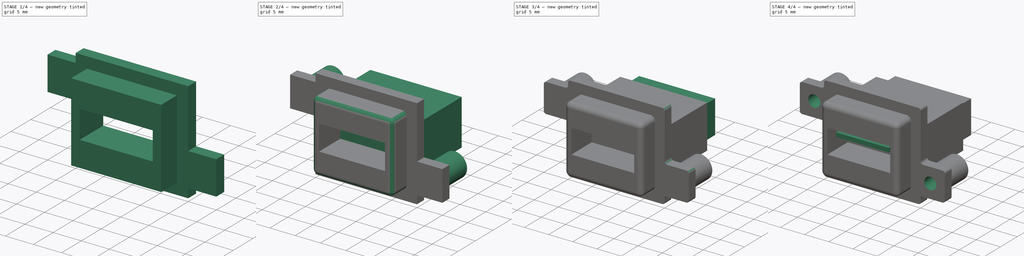
[diagram: build sequence overview — one tinted view per stage of 4, left to right]
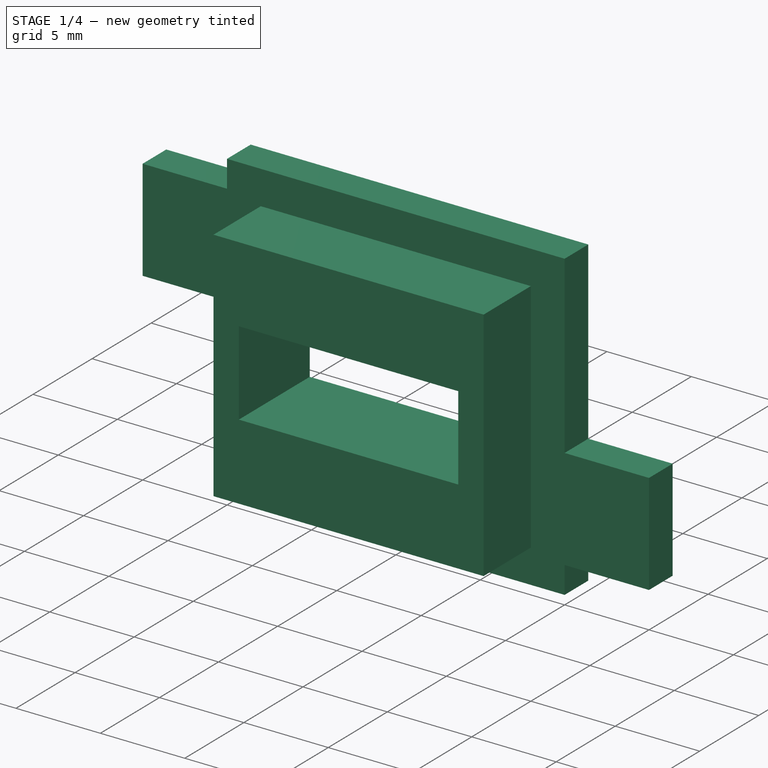
[diagram: stage 1 of 4 — iso view after this stage's code; geometry added in this stage tinted green]
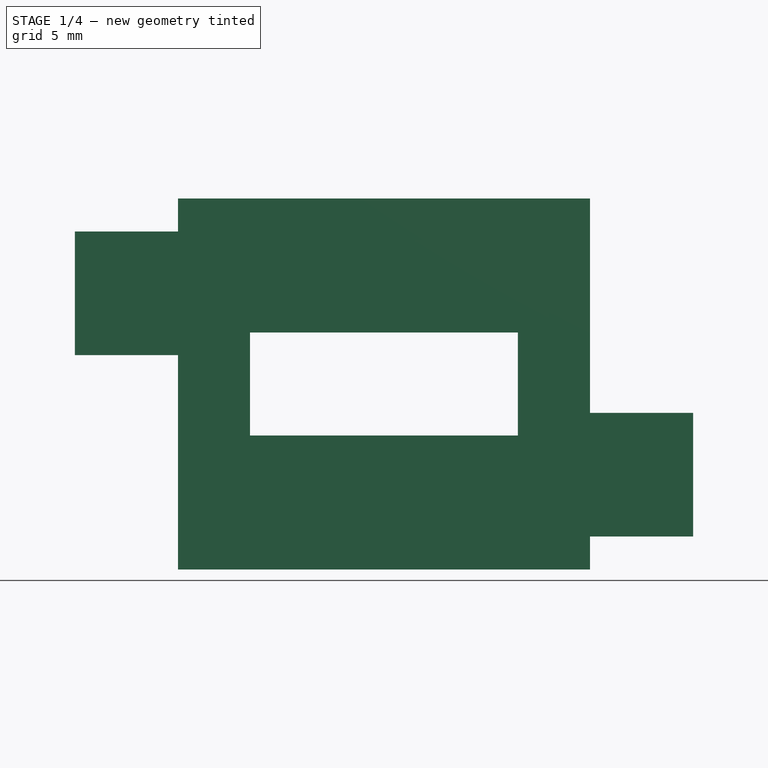
[diagram: stage 1 of 4 — front view after this stage's code; geometry added in this stage tinted green]
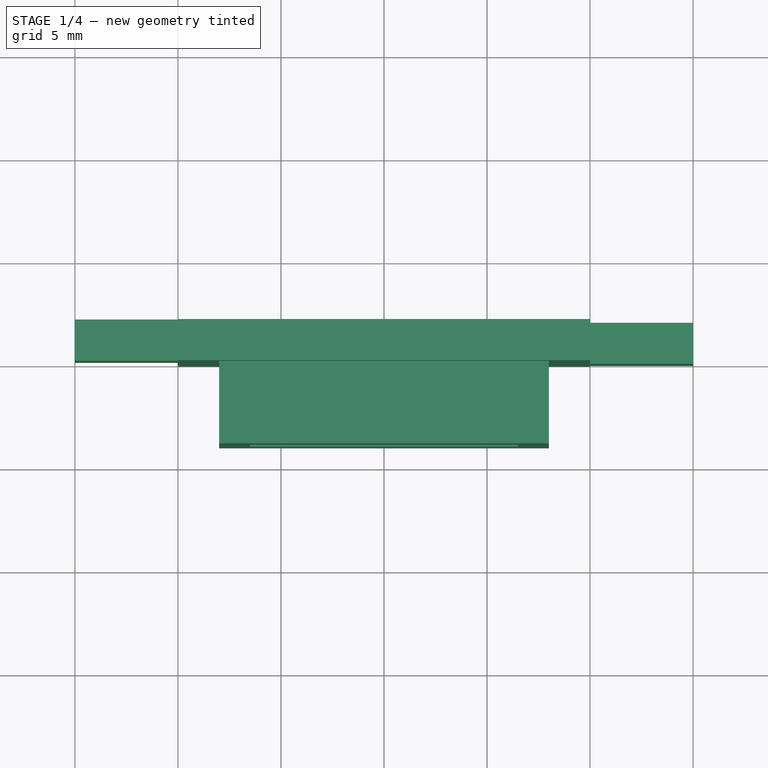
[diagram: stage 1 of 4 — top view after this stage's code; geometry added in this stage tinted green]
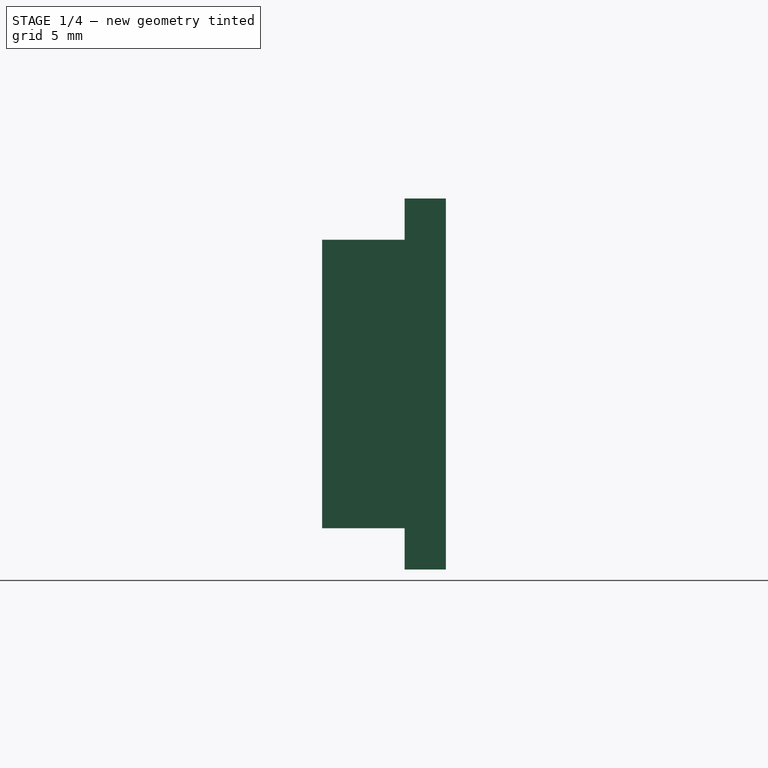
[diagram: stage 1 of 4 — right view after this stage's code; geometry added in this stage tinted green]
FCSTD DOCUMENT  (FreeCAD 0.18R15619 (Git))
Label: usb-socket
License: All rights reserved
LicenseURL: http://en.wikipedia.org/wiki/All_rights_reserved
objects: Sketcher::SketchObject×8, PartDesign::Pad×7, PartDesign::Fillet×2, PartDesign::Pocket×1, PartDesign::Body×1
note: 27 computed .brp shape members not serialized (recipe doc carries the construction recipe); baked Part::Feature solids carry a one-line shape summary decoded from their .brp

FEATURE [Sketcher::SketchObject] Sketch
  MapMode = 5
  Placement = pos=(0,0,0) rot=(1,0,0;1.5708rad)
  Support = -> [XZ_Plane]
  sketch-geometry (8):
    g0: LineSegment StartX=-8 StartY=7 StartZ=0 EndX=8 EndY=7 EndZ=0
    g1: LineSegment StartX=8 StartY=7 StartZ=0 EndX=8 EndY=-7 EndZ=0
    g2: LineSegment StartX=8 StartY=-7 StartZ=0 EndX=-8 EndY=-7 EndZ=0
    g3: LineSegment StartX=-8 StartY=-7 StartZ=0 EndX=-8 EndY=7 EndZ=0
    g4: LineSegment StartX=-6.5 StartY=2.5 StartZ=0 EndX=6.5 EndY=2.5 EndZ=0
    g5: LineSegment StartX=6.5 StartY=2.5 StartZ=0 EndX=6.5 EndY=-2.5 EndZ=0
    g6: LineSegment StartX=6.5 StartY=-2.5 StartZ=0 EndX=-6.5 EndY=-2.5 EndZ=0
    g7: LineSegment StartX=-6.5 StartY=-2.5 StartZ=0 EndX=-6.5 EndY=2.5 EndZ=0
  constraints (24):
    c: Coincident(g0,g1)
    c: Coincident(g1,g2)
    c: Coincident(g2,g3)
    c: Coincident(g3,g0)
    c: Horizontal(g0)
    c: Horizontal(g2)
    c: Vertical(g1)
    c: Vertical(g3)
    c: Distance(g0) = 16
    c: Distance(g1) = 14
    c: DistanceX(g-2,g0) = 8
    c: DistanceY(g-1,g0) = 7
    c: Coincident(g4,g5)
    c: Coincident(g5,g6)
    c: Coincident(g6,g7)
    c: Coincident(g7,g4)
    c: Horizontal(g4)
    c: Horizontal(g6)
    c: Vertical(g5)
    c: Vertical(g7)
    c: Distance(g4) = 13
    c: DistanceX(g-2,g4) = 6.5
    c: Distance(g7) = 5
    c: DistanceY(g-1,g6) = -2.5
FEATURE [Sketcher::SketchObject] Sketch001
  MapMode = 5
  Placement = pos=(0,0,0) rot=(1,0,0;1.5708rad)
  Support = -> [XZ_Plane]
  sketch-geometry (16):
    g0: LineSegment StartX=-10 StartY=9 StartZ=0 EndX=10 EndY=9 EndZ=0
    g1: LineSegment StartX=10 StartY=-9 StartZ=0 EndX=-10 EndY=-9 EndZ=0
    g2: LineSegment StartX=10 StartY=-1.4 StartZ=0 EndX=15 EndY=-1.4 EndZ=0
    g3: LineSegment StartX=15 StartY=-1.4 StartZ=0 EndX=15 EndY=-7.4 EndZ=0
    g4: LineSegment StartX=15 StartY=-7.4 StartZ=0 EndX=10 EndY=-7.4 EndZ=0
    g5: LineSegment StartX=10 StartY=9 StartZ=0 EndX=10 EndY=-1.4 EndZ=0
    g6: LineSegment StartX=10 StartY=-7.4 StartZ=0 EndX=10 EndY=-9 EndZ=0
    g7: LineSegment StartX=-10 StartY=7.4 StartZ=0 EndX=-15 EndY=7.4 EndZ=0
    g8: LineSegment StartX=-15 StartY=7.4 StartZ=0 EndX=-15 EndY=1.4 EndZ=0
    g9: LineSegment StartX=-15 StartY=1.4 StartZ=0 EndX=-10 EndY=1.4 EndZ=0
    g10: LineSegment StartX=-10 StartY=-9 StartZ=0 EndX=-10 EndY=1.4 EndZ=0
    g11: LineSegment StartX=-10 StartY=7.4 StartZ=0 EndX=-10 EndY=9 EndZ=0
    g12: LineSegment StartX=-6.5 StartY=2.5 StartZ=0 EndX=6.5 EndY=2.5 EndZ=0
    g13: LineSegment StartX=6.5 StartY=2.5 StartZ=0 EndX=6.5 EndY=-2.5 EndZ=0
    g14: LineSegment StartX=6.5 StartY=-2.5 StartZ=0 EndX=-6.5 EndY=-2.5 EndZ=0
    g15: LineSegment StartX=-6.5 StartY=-2.5 StartZ=0 EndX=-6.5 EndY=2.5 EndZ=0
  constraints (48):
    c: Horizontal(g0)
    c: Horizontal(g1)
    c: Distance(g0) = 20
    c: DistanceX(g-2,g0) = 10
    c: DistanceY(g-1,g0) = 9
    c: Coincident(g2,g3)
    c: Coincident(g3,g4)
    c: Horizontal(g2)
    c: Horizontal(g4)
    c: Vertical(g3)
    c: Distance(g3) = 6
    c: Distance(g2) = 5
    c: Coincident(g0,g5)
    c: Coincident(g2,g5)
    c: Vertical(g5)
    c: Coincident(g4,g6)
    c: Coincident(g1,g6)
    c: Distance(g6) = 1.6
    c: Vertical(g6)
    c: DistanceY(g-1,g1) = -9
    c: Coincident(g7,g8)
    c: Coincident(g8,g9)
    c: Horizontal(g7)
    c: Vertical(g8)
    c: Coincident(g0,g11)
    c: Coincident(g7,g11)
    c: Coincident(g9,g10)
    c: Coincident(g1,g10)
    c: Vertical(g10)
    c: Vertical(g11)
    c: Equal(g7,g2)
    c: Equal(g8,g3)
    c: Equal(g11,g6)
    c: Equal(g10,g5)
    c: Equal(g1,g0)
    c: Vertical(g4,g2)
    c: Coincident(g12,g13)
    c: Coincident(g13,g14)
    c: Coincident(g14,g15)
    c: Coincident(g15,g12)
    c: Horizontal(g12)
    c: Horizontal(g14)
    c: Vertical(g13)
    c: Vertical(g15)
    c: Distance(g12) = 13
    c: Distance(g15) = 5
    c: DistanceY(g-1,g12) = 2.5
    c: DistanceX(g-2,g12) = -6.5
FEATURE [PartDesign::Pad] Pad
  Length = 2
  Length2 = 100
  Placement = pos=(0,0,0) rot=(1,0,0;1.5708rad)
  Profile = -> Sketch001
  Reversed = true
  Type = 0
FEATURE [PartDesign::Pad] Pad001
  BaseFeature = -> Pad
  Length = 4
  Length2 = 100
  Placement = pos=(0,0,0) rot=(1,0,0;1.5708rad)
  Profile = -> Sketch
  Type = 0
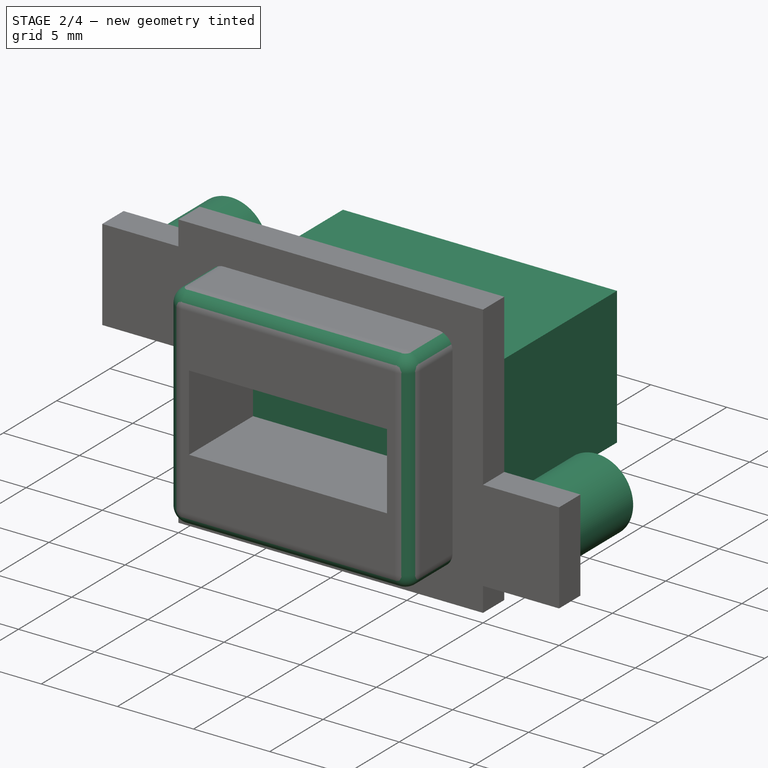
[diagram: stage 2 of 4 — iso view after this stage's code; geometry added in this stage tinted green]
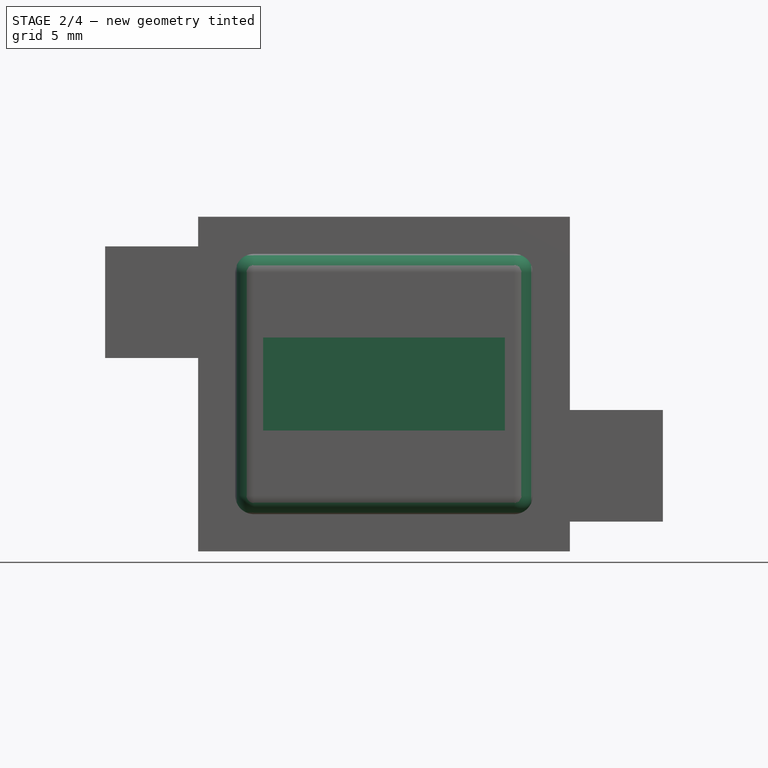
[diagram: stage 2 of 4 — front view after this stage's code; geometry added in this stage tinted green]
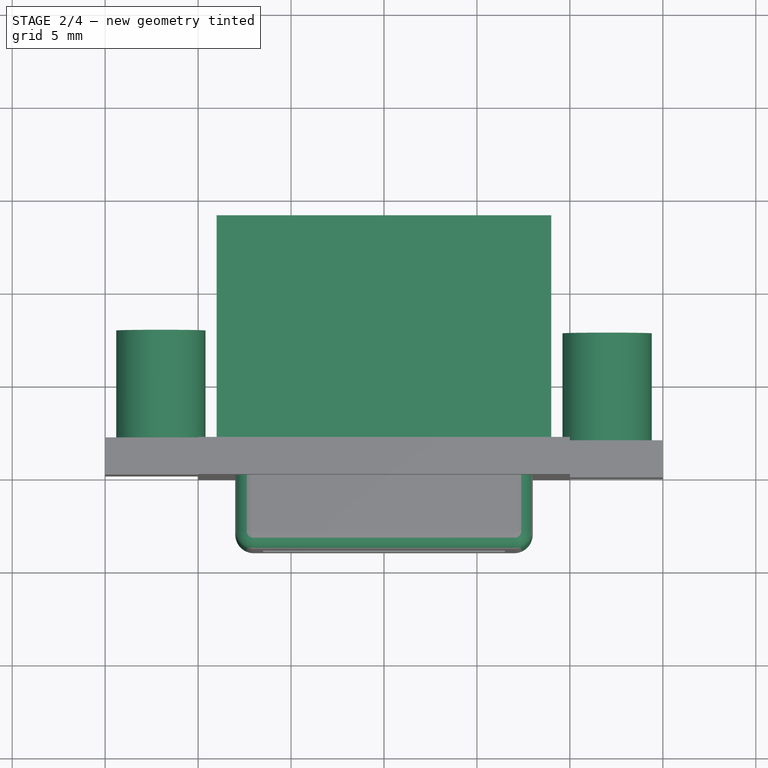
[diagram: stage 2 of 4 — top view after this stage's code; geometry added in this stage tinted green]
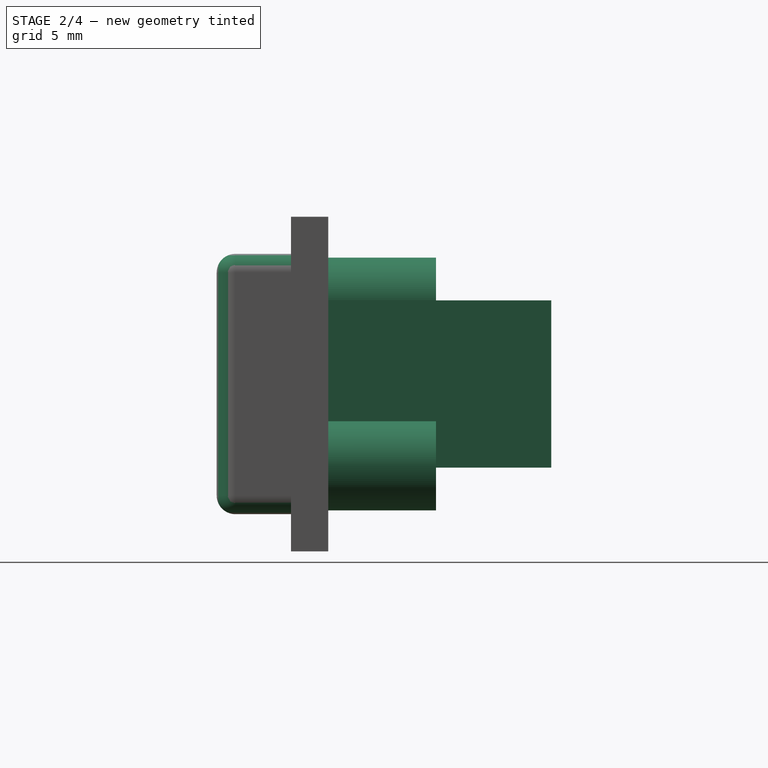
[diagram: stage 2 of 4 — right view after this stage's code; geometry added in this stage tinted green]
FEATURE [Sketcher::SketchObject] Sketch002
  ExternalGeometry = -> [Pad001]
  MapMode = 5
  Placement = pos=(0,2,4e-16) rot=(-1,0,0;1.5708rad)
  Support = -> [Pad001]
  sketch-geometry (2):
    g0: Circle CenterX=12 CenterY=4.4 CenterZ=0 NormalX=0 NormalY=0 NormalZ=1 AngleXU=0 Radius=2.4
    g1: Circle CenterX=-12 CenterY=-4.4 CenterZ=0 NormalX=0 NormalY=0 NormalZ=1 AngleXU=0 Radius=2.4
  constraints (6):
    c: Radius(g0) = 2.4
    c: Equal(g1,g0)
    c: Distance(g0,g-4) = 3
    c: Distance(g0,g-3) = 3
    c: Distance(g1,g-7) = 3
    c: Distance(g1,g-6) = 3
FEATURE [PartDesign::Pad] Pad002
  BaseFeature = -> Pad001
  Length = 5.8
  Length2 = 100
  Placement = pos=(0,0,0) rot=(1,0,0;1.5708rad)
  Profile = -> Sketch002
  Type = 0
FEATURE [PartDesign::Fillet] Fillet
  Base = -> Pad002 [Edge52,Edge54,Edge51,Edge50,Edge53,Edge49,Edge47,Edge48]
  BaseFeature = -> Pad002
  Placement = pos=(0,0,0) rot=(1,0,0;1.5708rad)
  Radius = 1
FEATURE [Sketcher::SketchObject] Sketch003
  MapMode = 5
  Placement = pos=(0,2,-9e-16) rot=(-1,0,0;1.5708rad)
  Support = -> [Fillet]
  sketch-geometry (4):
    g0: LineSegment StartX=-9 StartY=4.5 StartZ=0 EndX=9 EndY=4.5 EndZ=0
    g1: LineSegment StartX=9 StartY=4.5 StartZ=0 EndX=9 EndY=-4.5 EndZ=0
    g2: LineSegment StartX=9 StartY=-4.5 StartZ=0 EndX=-9 EndY=-4.5 EndZ=0
    g3: LineSegment StartX=-9 StartY=-4.5 StartZ=0 EndX=-9 EndY=4.5 EndZ=0
  constraints (12):
    c: Coincident(g0,g1)
    c: Coincident(g1,g2)
    c: Coincident(g2,g3)
    c: Coincident(g3,g0)
    c: Horizontal(g0)
    c: Horizontal(g2)
    c: Vertical(g1)
    c: Vertical(g3)
    c: Distance(g0) = 18
    c: Distance(g1) = 9
    c: DistanceY(g-1,g0) = 4.5
    c: DistanceX(g-2,g0) = 9
FEATURE [PartDesign::Pad] Pad003
  BaseFeature = -> Fillet
  Length = 12
  Length2 = 100
  Placement = pos=(0,0,0) rot=(1,0,0;1.5708rad)
  Profile = -> Sketch003
  Type = 0
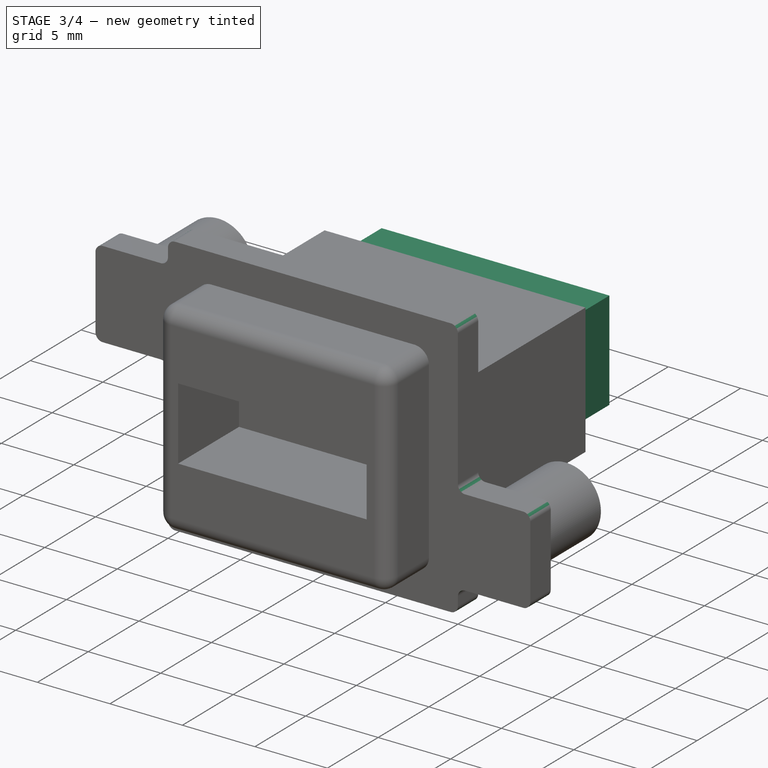
[diagram: stage 3 of 4 — iso view after this stage's code; geometry added in this stage tinted green]
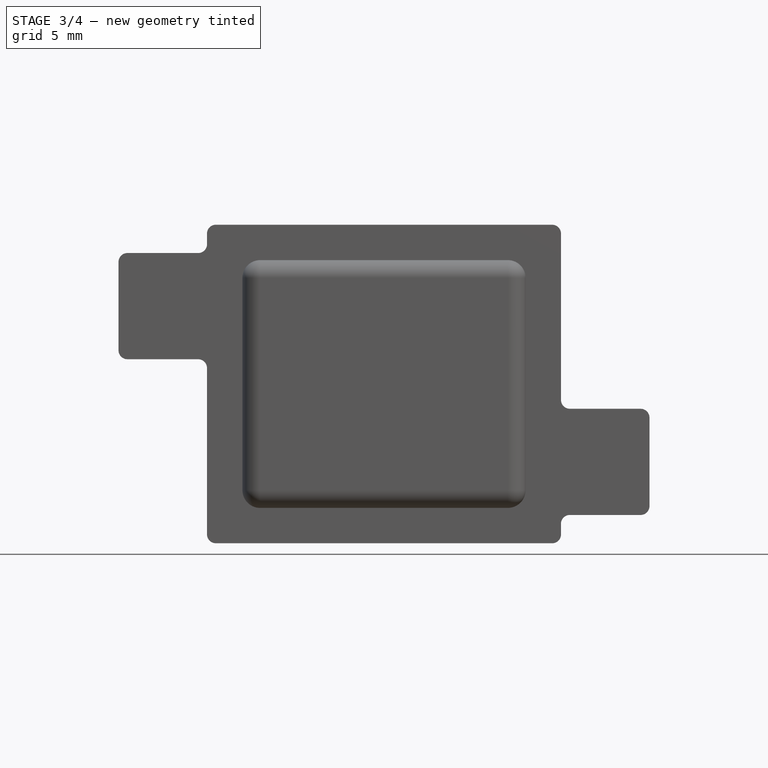
[diagram: stage 3 of 4 — front view after this stage's code; geometry added in this stage tinted green]
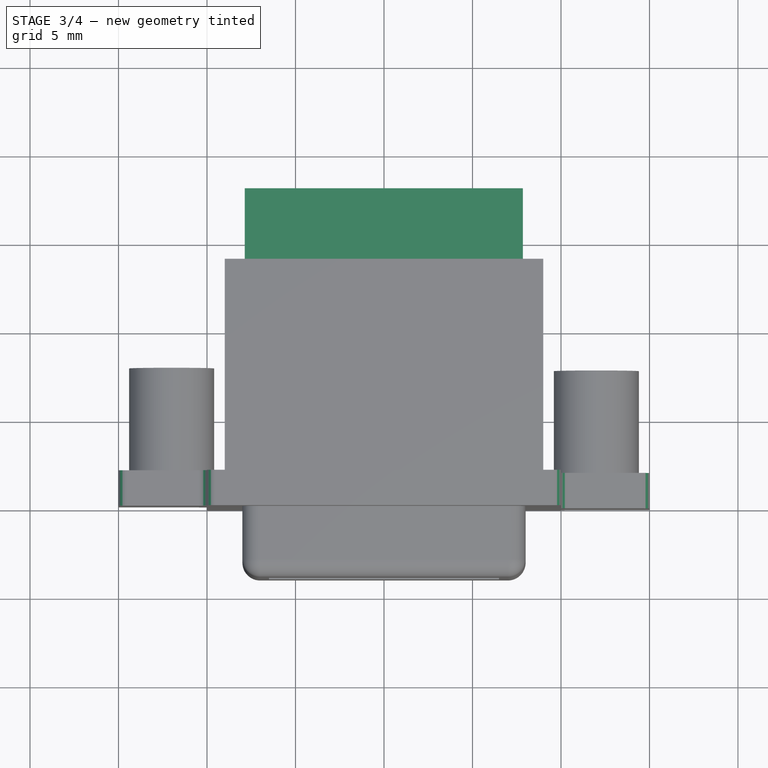
[diagram: stage 3 of 4 — top view after this stage's code; geometry added in this stage tinted green]
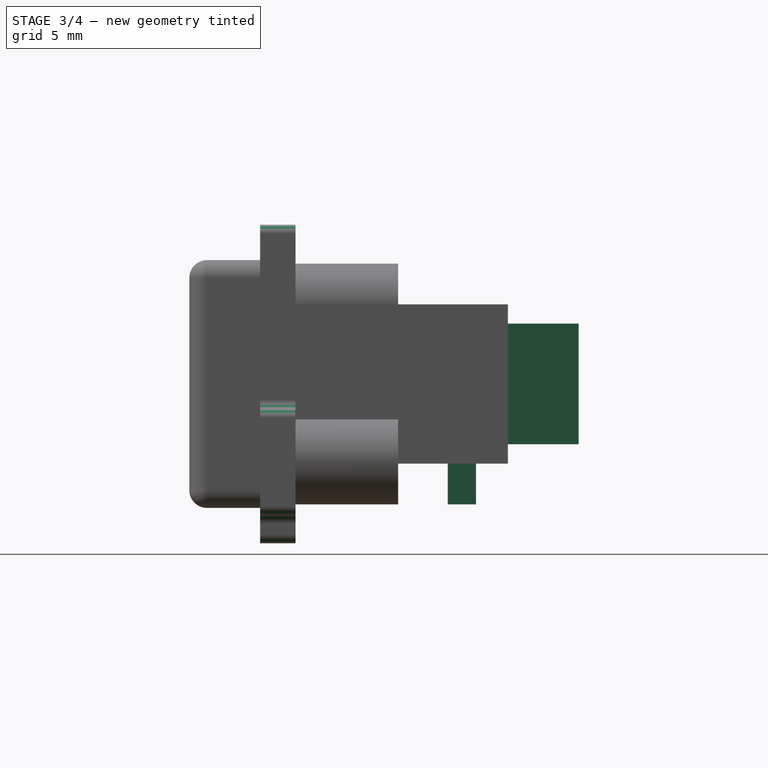
[diagram: stage 3 of 4 — right view after this stage's code; geometry added in this stage tinted green]
FEATURE [PartDesign::Fillet] Fillet001
  Base = -> Pad003 [Edge23,Edge24,Edge26,Edge30,Edge38,Edge28,Edge32,Edge36,Edge40,Edge42,Edge44,Edge34,Edge68,Edge63,Edge64,Edge66,Edge67,Edge69,Edge65,Edge70,Edge72,Edge71,Edge74,Edge73,Edge52,Edge48,Edge56,Edge54,Edge58,Edge50,Edge46,Edge37]
  BaseFeature = -> Pad003
  Placement = pos=(0,0,0) rot=(1,0,0;1.5708rad)
  Radius = 0.5
FEATURE [Sketcher::SketchObject] Sketch004
  MapMode = 5
  Placement = pos=(0,14,-5.9e-15) rot=(-1,0,0;1.5708rad)
  Support = -> [Fillet001]
  sketch-geometry (4):
    g0: LineSegment StartX=-7.86511 StartY=3.40166 StartZ=0 EndX=7.84707 EndY=3.40166 EndZ=0
    g1: LineSegment StartX=7.84707 StartY=3.40166 StartZ=0 EndX=7.84707 EndY=-3.41104 EndZ=0
    g2: LineSegment StartX=7.84707 StartY=-3.41104 StartZ=0 EndX=-7.86511 EndY=-3.41104 EndZ=0
    g3: LineSegment StartX=-7.86511 StartY=-3.41104 StartZ=0 EndX=-7.86511 EndY=3.40166 EndZ=0
  constraints (8):
    c: Coincident(g0,g1)
    c: Coincident(g1,g2)
    c: Coincident(g2,g3)
    c: Coincident(g3,g0)
    c: Horizontal(g0)
    c: Horizontal(g2)
    c: Vertical(g1)
    c: Vertical(g3)
FEATURE [PartDesign::Pad] Pad004
  BaseFeature = -> Fillet001
  Length = 4
  Length2 = 100
  Placement = pos=(0,0,0) rot=(1,0,0;1.5708rad)
  Profile = -> Sketch004
  Type = 0
FEATURE [Sketcher::SketchObject] Sketch005
  MapMode = 5
  Placement = pos=(0,-2e-15,-4.5) rot=(1,0,0;3.14159rad)
  Support = -> [Pad004]
  sketch-geometry (8):
    g0: LineSegment StartX=6.0058 StartY=-10.5992 StartZ=0 EndX=7.47881 EndY=-10.5992 EndZ=0
    g1: LineSegment StartX=7.47881 StartY=-10.5992 StartZ=0 EndX=7.47881 EndY=-12.1336 EndZ=0
    g2: LineSegment StartX=7.47881 StartY=-12.1336 StartZ=0 EndX=6.0058 EndY=-12.1336 EndZ=0
    g3: LineSegment StartX=6.0058 StartY=-12.1336 StartZ=0 EndX=6.0058 EndY=-10.5992 EndZ=0
    g4: LineSegment StartX=-7.25135 StartY=-10.5992 StartZ=0 EndX=-5.71696 EndY=-10.5992 EndZ=0
    g5: LineSegment StartX=-5.71696 StartY=-10.5992 StartZ=0 EndX=-5.71696 EndY=-12.195 EndZ=0
    g6: LineSegment StartX=-5.71696 StartY=-12.195 StartZ=0 EndX=-7.25135 EndY=-12.195 EndZ=0
    g7: LineSegment StartX=-7.25135 StartY=-12.195 StartZ=0 EndX=-7.25135 EndY=-10.5992 EndZ=0
  constraints (16):
    c: Coincident(g0,g1)
    c: Coincident(g1,g2)
    c: Coincident(g2,g3)
    c: Coincident(g3,g0)
    c: Horizontal(g0)
    c: Horizontal(g2)
    c: Vertical(g1)
    c: Vertical(g3)
    c: Coincident(g4,g5)
    c: Coincident(g5,g6)
    c: Coincident(g6,g7)
    c: Coincident(g7,g4)
    c: Horizontal(g4)
    c: Horizontal(g6)
    c: Vertical(g5)
    c: Vertical(g7)
FEATURE [PartDesign::Pad] Pad005
  BaseFeature = -> Pad004
  Length = 2.3
  Length2 = 100
  Placement = pos=(0,0,0) rot=(1,0,0;1.5708rad)
  Profile = -> Sketch005
  Type = 0
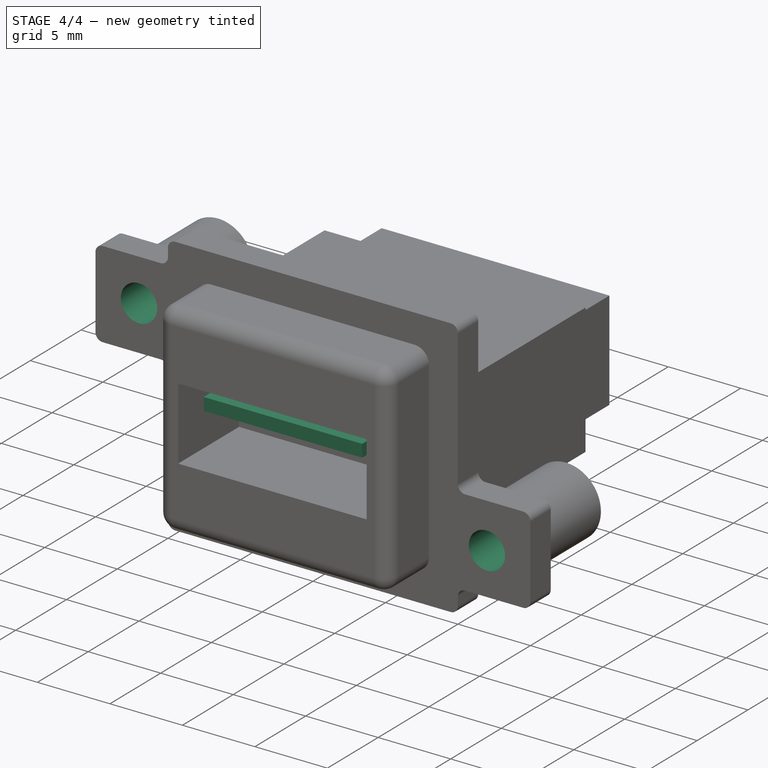
[diagram: stage 4 of 4 — iso view after this stage's code; geometry added in this stage tinted green]
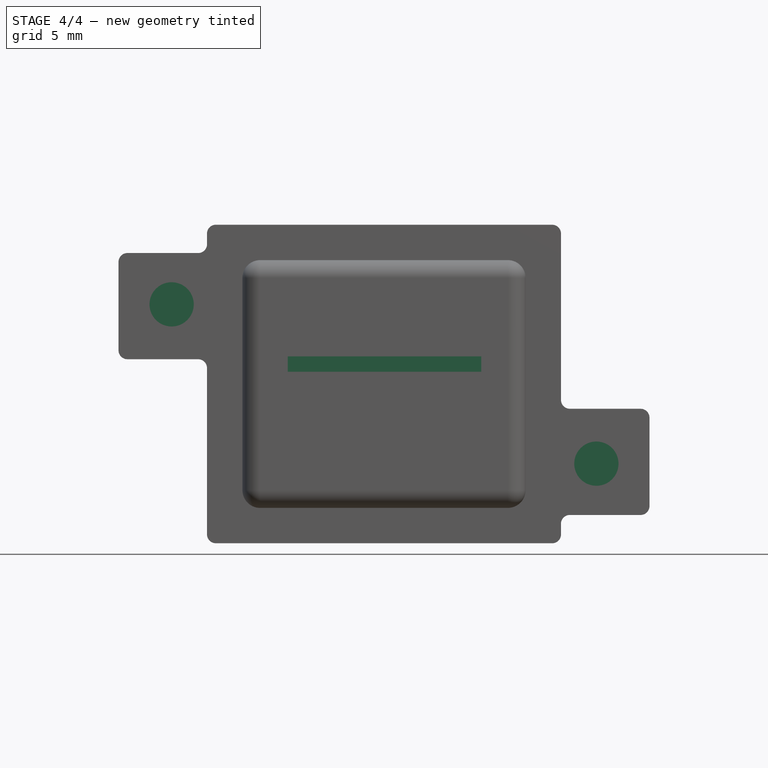
[diagram: stage 4 of 4 — front view after this stage's code; geometry added in this stage tinted green]
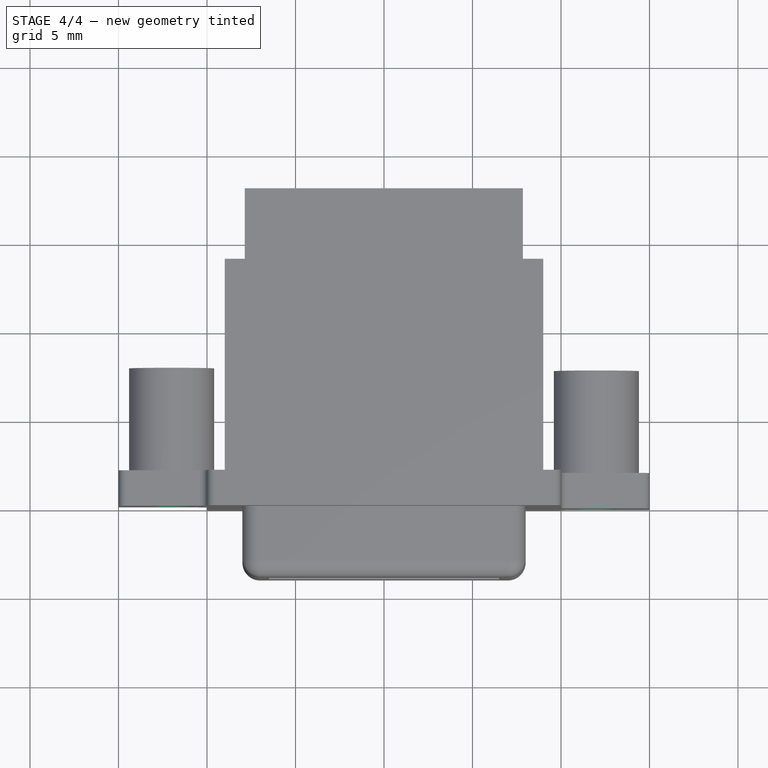
[diagram: stage 4 of 4 — top view after this stage's code; geometry added in this stage tinted green]
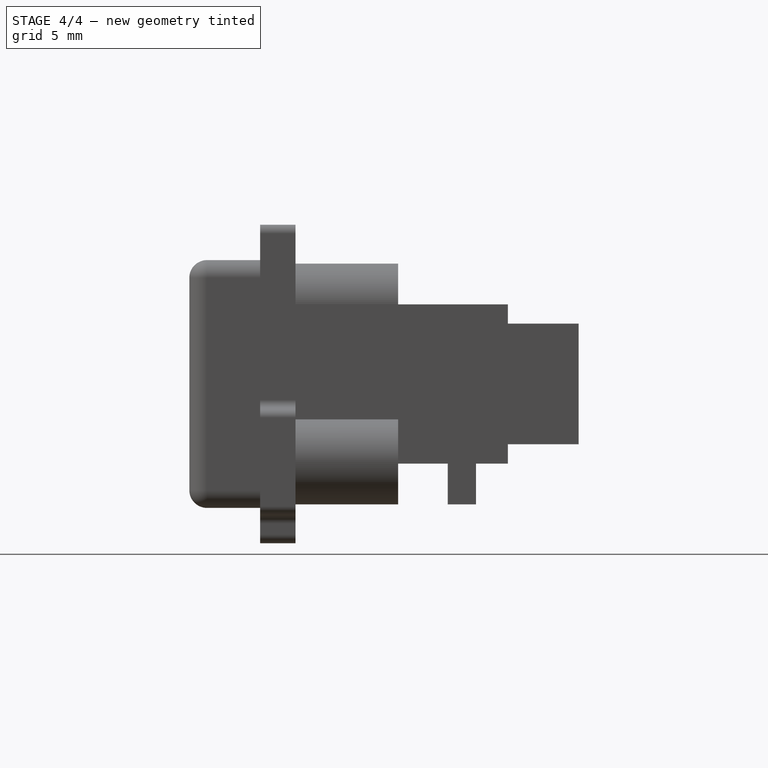
[diagram: stage 4 of 4 — right view after this stage's code; geometry added in this stage tinted green]
FEATURE [Sketcher::SketchObject] Sketch006
  MapMode = 5
  Placement = pos=(0,0,0) rot=(1,0,0;1.5708rad)
  Support = -> [Pad005]
  sketch-geometry (2):
    g0: Circle CenterX=-12 CenterY=4.5 CenterZ=0 NormalX=0 NormalY=0 NormalZ=1 AngleXU=0 Radius=1.25
    g1: Circle CenterX=12 CenterY=-4.5 CenterZ=0 NormalX=0 NormalY=0 NormalZ=1 AngleXU=0 Radius=1.25
  constraints (6):
    c: DistanceX(g0,g1) = 24
    c: DistanceX(g-2,g1) = 12
    c: Radius(g1) = 1.25
    c: Equal(g1,g0)
    c: DistanceY(g1,g0) = 9
    c: DistanceY(g-1,g0) = 4.5
FEATURE [PartDesign::Pocket] Pocket
  BaseFeature = -> Pad005
  Length = 7
  Length2 = 100
  Placement = pos=(0,0,0) rot=(1,0,0;1.5708rad)
  Profile = -> Sketch006
  Refine = true
  Type = 0
FEATURE [Sketcher::SketchObject] Sketch007
  MapMode = 5
  Placement = pos=(0,2,-8e-16) rot=(1,0,0;1.5708rad)
  Support = -> [Pocket]
  sketch-geometry (4):
    g0: LineSegment StartX=-5.43512 StartY=1.55835 StartZ=0 EndX=5.49717 EndY=1.55835 EndZ=0
    g1: LineSegment StartX=5.49717 StartY=1.55835 StartZ=0 EndX=5.49717 EndY=0.695281 EndZ=0
    g2: LineSegment StartX=5.49717 StartY=0.695281 StartZ=0 EndX=-5.43512 EndY=0.695281 EndZ=0
    g3: LineSegment StartX=-5.43512 StartY=0.695281 StartZ=0 EndX=-5.43512 EndY=1.55835 EndZ=0
  constraints (8):
    c: Coincident(g0,g1)
    c: Coincident(g1,g2)
    c: Coincident(g2,g3)
    c: Coincident(g3,g0)
    c: Horizontal(g0)
    c: Horizontal(g2)
    c: Vertical(g1)
    c: Vertical(g3)
FEATURE [PartDesign::Pad] Pad006
  BaseFeature = -> Pocket
  Length = 5
  Length2 = 100
  Placement = pos=(0,0,0) rot=(1,0,0;1.5708rad)
  Profile = -> Sketch007
  Type = 0
FEATURE [PartDesign::Body] Body
  Group = -> [Sketch,Sketch001,Pad,Pad001,Sketch002,Pad002,Fillet,Sketch003,Pad003,Fillet001,Sketch004,Pad004,Sketch005,Pad005,Sketch006,Pocket,Sketch007,Pad006]
  Origin = -> Origin
  Tip = -> Pad006
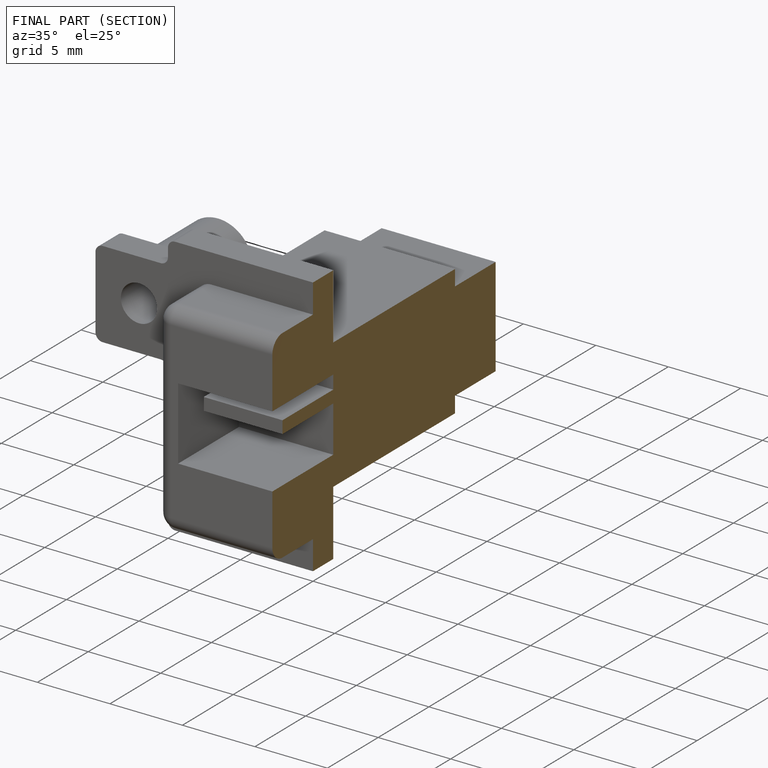
[diagram: finished part — half-section view (interior)]
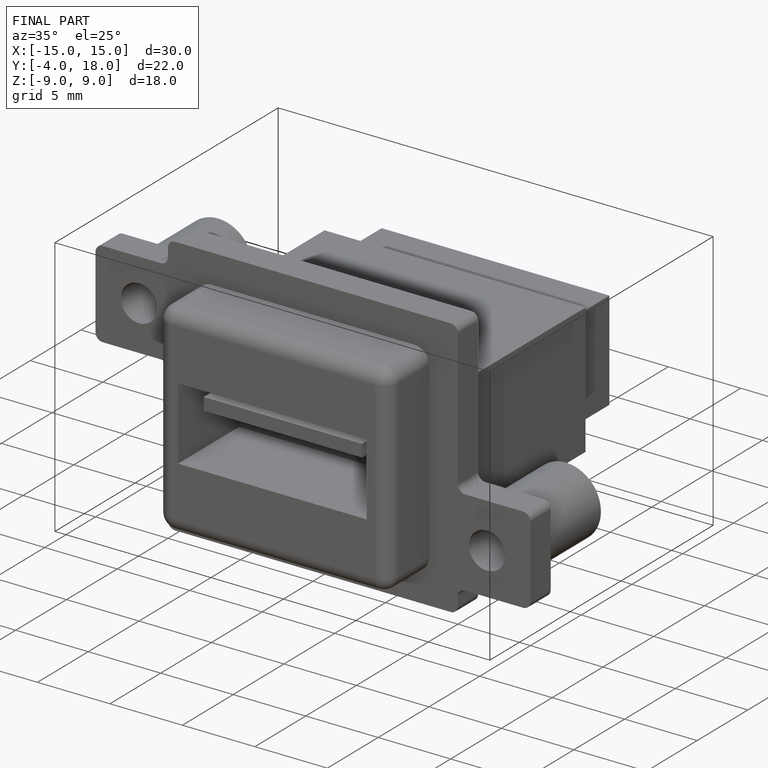
[diagram: finished part — iso view with bounding-box wireframe]
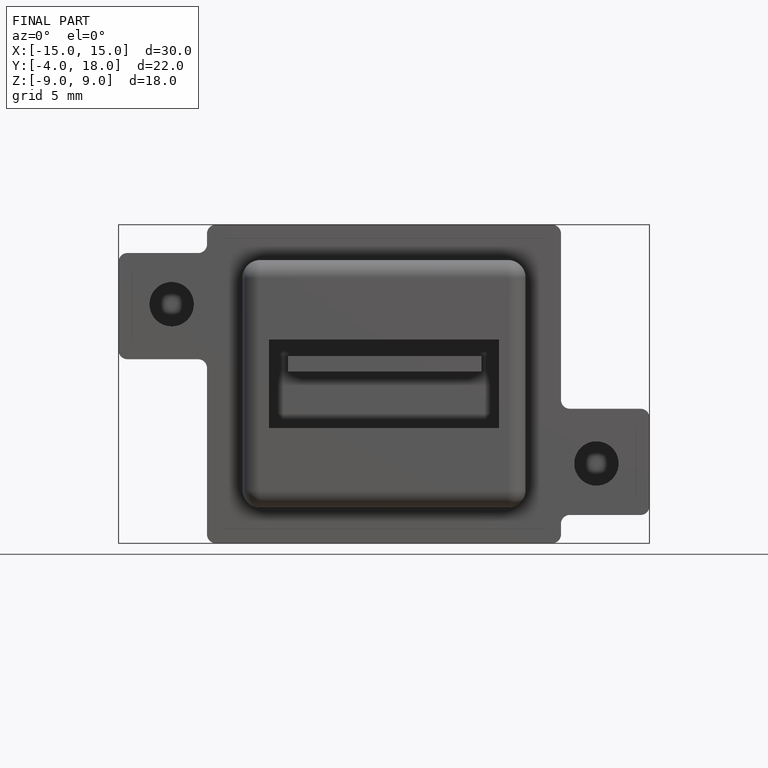
[diagram: finished part — front view with bounding-box wireframe]
